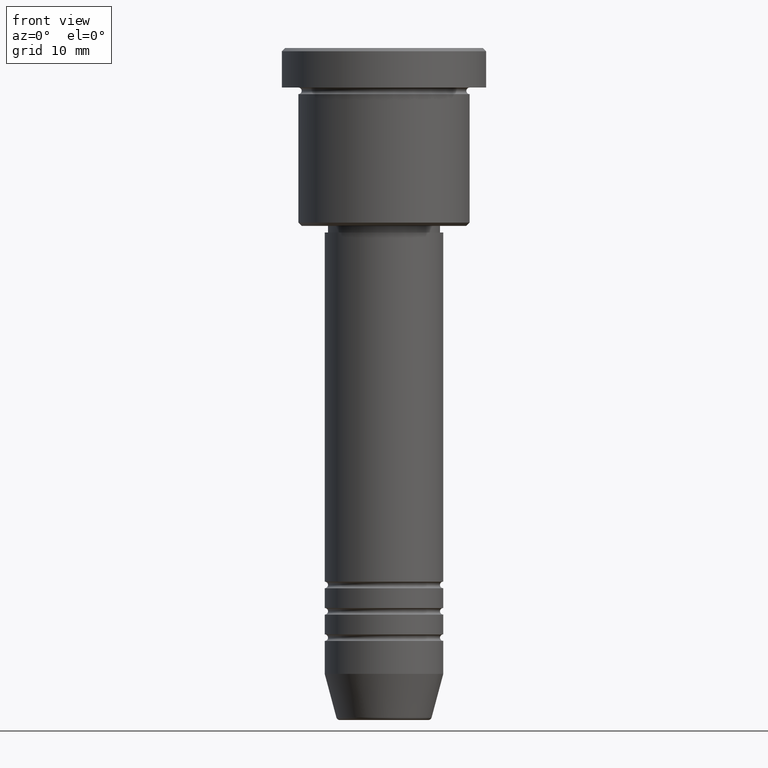
[diagram: clean part render]
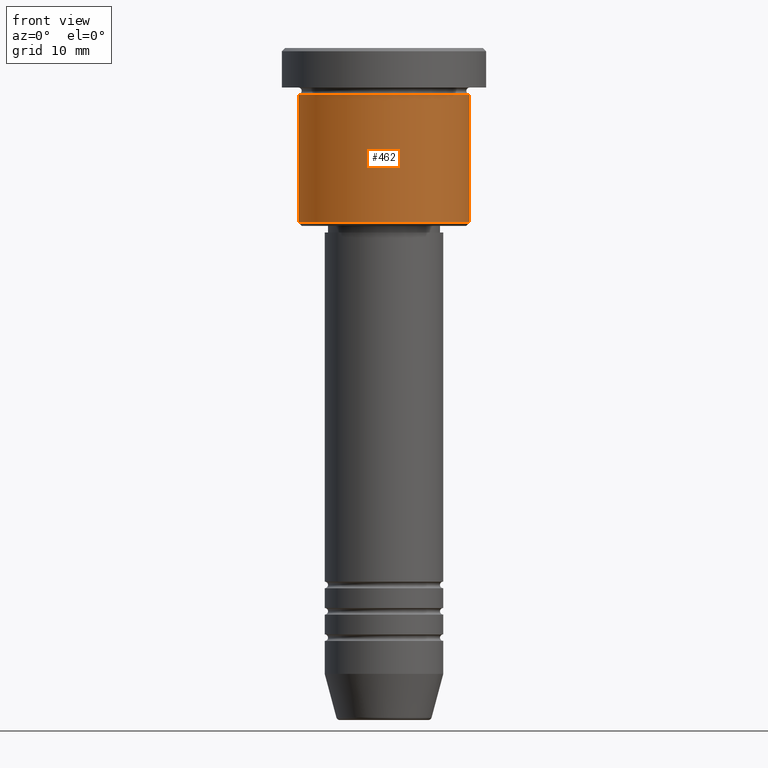
[diagram: same view with one face highlighted and labeled with its STEP entity id]
A machine part, front view. The second image highlights one B-rep face of the part: STEP entity #462.
In plain terms, the highlighted cylindrical surface (partial cylindrical patch) has radius 13 mm, axis along (-0, -0, 1).
Its self-contained STEP definition (entity closure, byte-faithful):
#51 = VERTEX_POINT ( 'NONE', #791 ) ;
#59 = CARTESIAN_POINT ( 'NONE',  ( 0.000000000000000000, 0.000000000000000000, -6.999999999999995559 ) ) ;
#111 = VECTOR ( 'NONE', #135, 1000.000000000000000 ) ;
#135 = DIRECTION ( 'NONE',  ( -0.000000000000000000, -0.000000000000000000, 1.000000000000000000 ) ) ;
#165 = EDGE_LOOP ( 'NONE', ( #956, #635, #1051, #319 ) ) ;
#168 = CYLINDRICAL_SURFACE ( 'NONE', #1169, 13.00000000000000178 ) ;
#233 = CARTESIAN_POINT ( 'NONE',  ( 0.000000000000000000, 0.000000000000000000, 0.000000000000000000 ) ) ;
#271 = CIRCLE ( 'NONE', #1115, 13.00000000000000178 ) ;
#274 = EDGE_CURVE ( 'NONE', #673, #1083, #952, .T. ) ;
#278 = CARTESIAN_POINT ( 'NONE',  ( 0.000000000000000000, 0.000000000000000000, -26.49999999999999289 ) ) ;
#318 = DIRECTION ( 'NONE',  ( -0.000000000000000000, -0.000000000000000000, 1.000000000000000000 ) ) ;
#319 = ORIENTED_EDGE ( 'NONE', *, *, #542, .F. ) ;
#414 = DIRECTION ( 'NONE',  ( 1.000000000000000000, 0.000000000000000000, 0.000000000000000000 ) ) ;
#432 = FACE_OUTER_BOUND ( 'NONE', #165, .T. ) ;
#448 = DIRECTION ( 'NONE',  ( -1.000000000000000000, 0.000000000000000000, 0.000000000000000000 ) ) ;
#455 = CARTESIAN_POINT ( 'NONE',  ( 13.00000000000000178, 0.000000000000000000, -6.999999999999995559 ) ) ;
#462 = ADVANCED_FACE ( 'NONE', ( #432 ), #168, .T. ) ;
#469 = CARTESIAN_POINT ( 'NONE',  ( -13.00000000000000178, 1.592040838891559293E-15, -6.999999999999995559 ) ) ;
#542 = EDGE_CURVE ( 'NONE', #719, #1083, #271, .T. ) ;
#562 = CARTESIAN_POINT ( 'NONE',  ( -13.00000000000000178, 1.592040838891559293E-15, 0.000000000000000000 ) ) ;
#589 = VECTOR ( 'NONE', #318, 1000.000000000000000 ) ;
#612 = DIRECTION ( 'NONE',  ( -0.000000000000000000, -0.000000000000000000, 1.000000000000000000 ) ) ;
#635 = ORIENTED_EDGE ( 'NONE', *, *, #1178, .T. ) ;
#673 = VERTEX_POINT ( 'NONE', #926 ) ;
#698 = DIRECTION ( 'NONE',  ( -0.000000000000000000, -0.000000000000000000, 1.000000000000000000 ) ) ;
#719 = VERTEX_POINT ( 'NONE', #469 ) ;
#786 = DIRECTION ( 'NONE',  ( 1.000000000000000000, 0.000000000000000000, 0.000000000000000000 ) ) ;
#791 = CARTESIAN_POINT ( 'NONE',  ( -13.00000000000000178, 1.592040838891559293E-15, -26.49999999999999289 ) ) ;
#800 = EDGE_CURVE ( 'NONE', #51, #719, #863, .T. ) ;
#858 = CIRCLE ( 'NONE', #1006, 13.00000000000000178 ) ;
#863 = LINE ( 'NONE', #562, #589 ) ;
#895 = DIRECTION ( 'NONE',  ( -0.000000000000000000, -0.000000000000000000, 1.000000000000000000 ) ) ;
#926 = CARTESIAN_POINT ( 'NONE',  ( 13.00000000000000178, 0.000000000000000000, -26.49999999999999289 ) ) ;
#934 = CARTESIAN_POINT ( 'NONE',  ( 13.00000000000000178, 0.000000000000000000, 0.000000000000000000 ) ) ;
#952 = LINE ( 'NONE', #934, #111 ) ;
#956 = ORIENTED_EDGE ( 'NONE', *, *, #800, .F. ) ;
#1006 = AXIS2_PLACEMENT_3D ( 'NONE', #278, #895, #448 ) ;
#1051 = ORIENTED_EDGE ( 'NONE', *, *, #274, .T. ) ;
#1083 = VERTEX_POINT ( 'NONE', #455 ) ;
#1115 = AXIS2_PLACEMENT_3D ( 'NONE', #59, #698, #786 ) ;
#1169 = AXIS2_PLACEMENT_3D ( 'NONE', #233, #612, #414 ) ;
#1178 = EDGE_CURVE ( 'NONE', #51, #673, #858, .T. ) ;